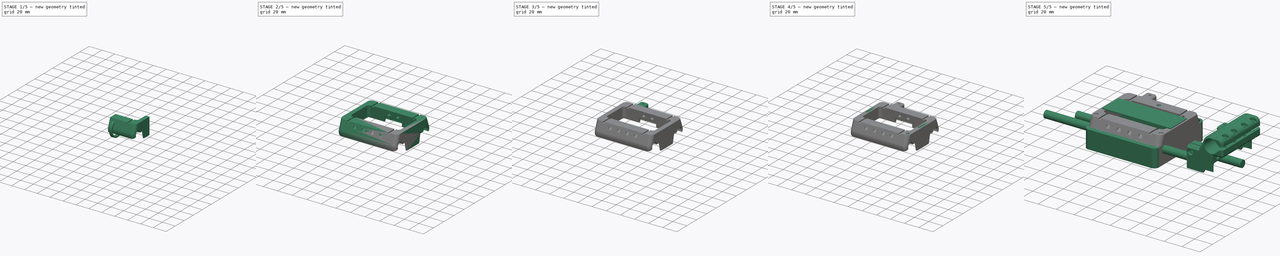
[diagram: build sequence overview — one tinted view per stage of 5, left to right]
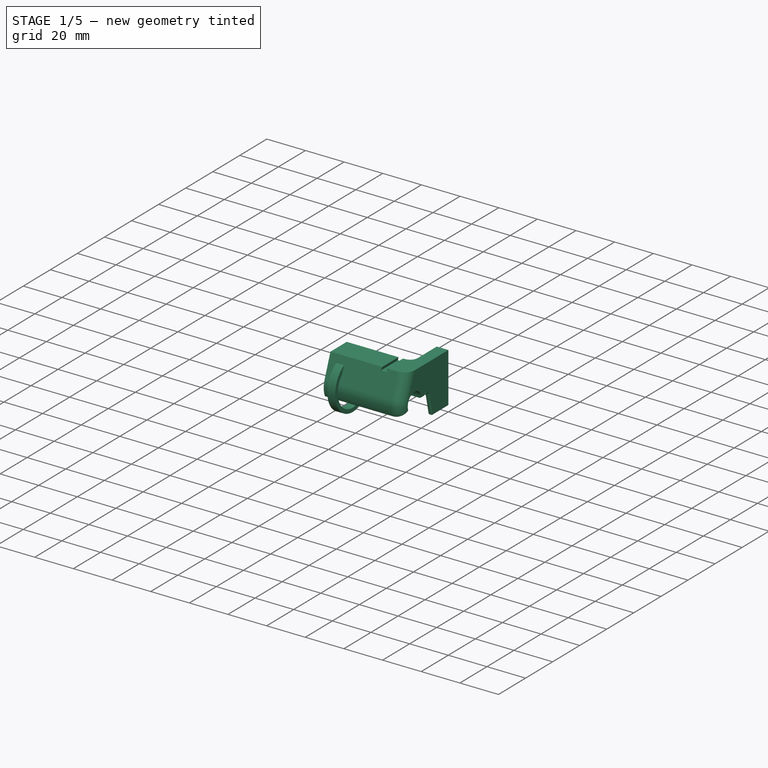
[diagram: stage 1 of 5 — iso view after this stage's code; geometry added in this stage tinted green]
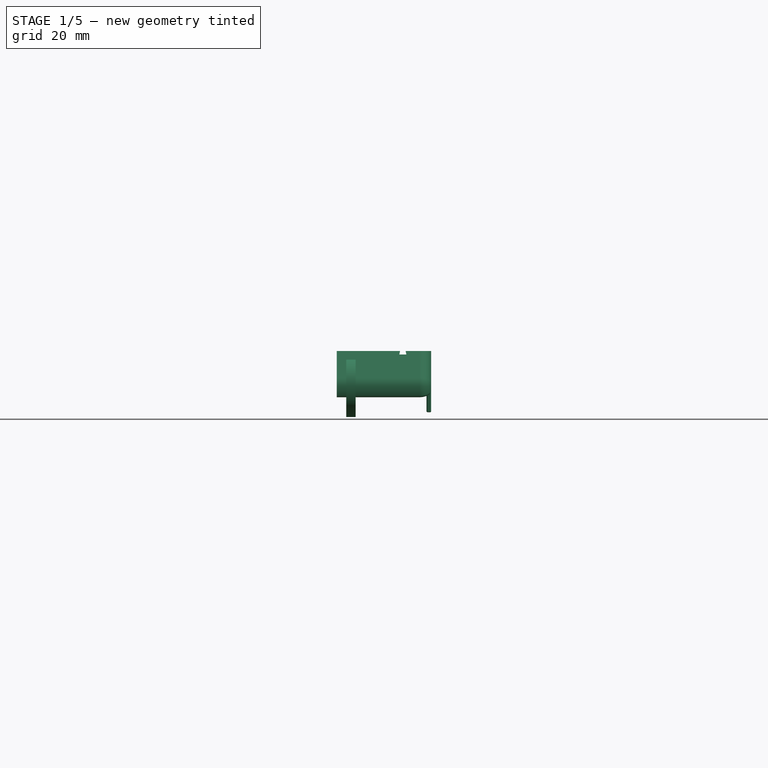
[diagram: stage 1 of 5 — front view after this stage's code; geometry added in this stage tinted green]
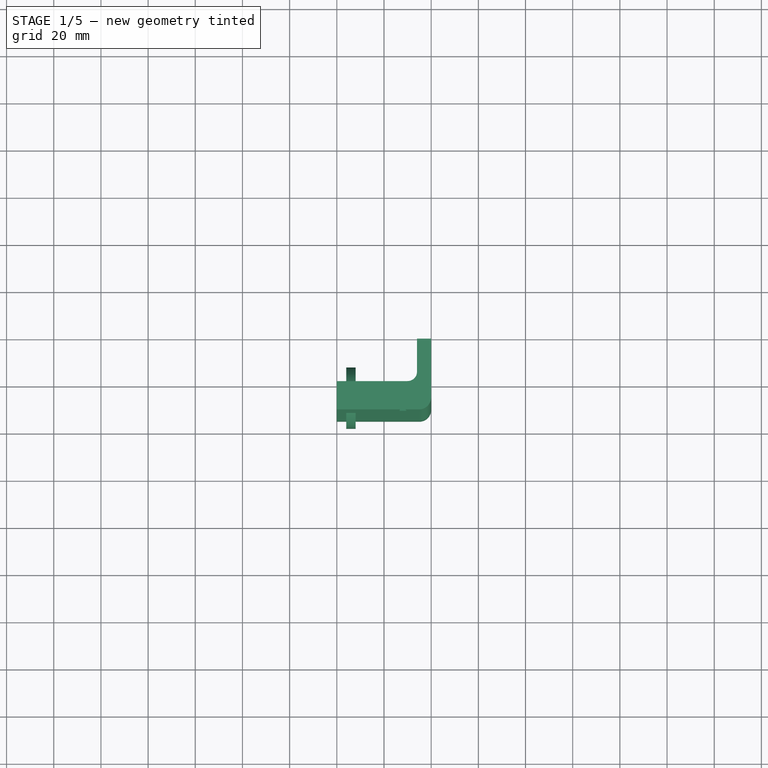
[diagram: stage 1 of 5 — top view after this stage's code; geometry added in this stage tinted green]
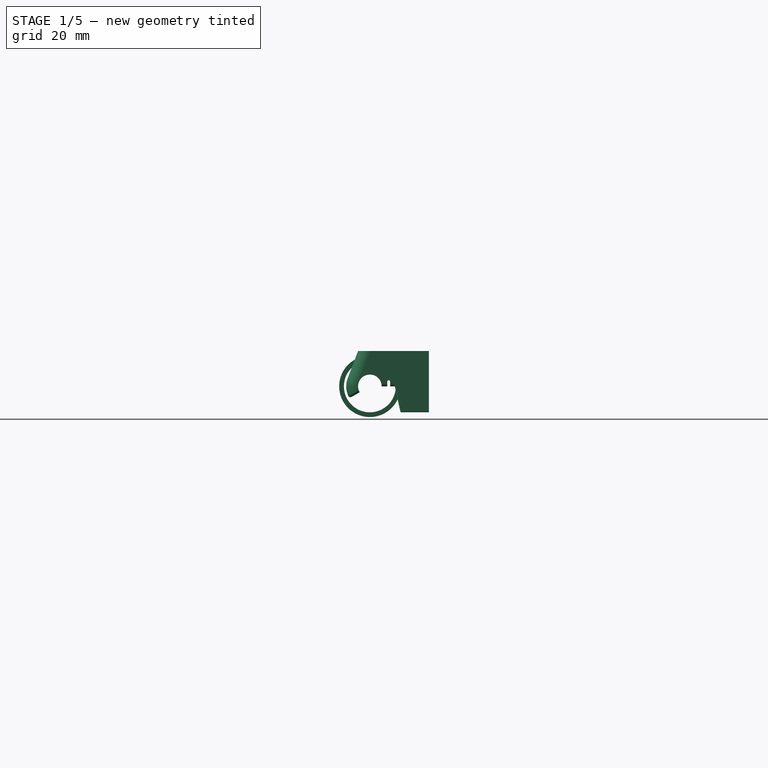
[diagram: stage 1 of 5 — right view after this stage's code; geometry added in this stage tinted green]
FCSTD DOCUMENT  (FreeCAD 0.16RUnknown)
Label: Xcarriage
License: All rights reserved
LicenseURL: http://en.wikipedia.org/wiki/All_rights_reserved
objects: Part::FeaturePython×21, Sketcher::SketchObject×14, Part::Cut×12, Part::Fillet×8, PartDesign::Pocket×6, Part::Mirroring×6, PartDesign::Pad×4, Part::MultiFuse×4, Part::Cylinder×3, App::DocumentObjectGroup×3, Part::Box×2, PartDesign::Revolution×2, Part::Feature×2, Spreadsheet::Sheet×1, Part::Offset×1, Part::Compound×1, Part::Extrusion×1, Part::Chamfer×1
note: 100 computed .brp shape members not serialized (recipe doc carries the construction recipe); baked Part::Feature solids carry a one-line shape summary decoded from their .brp

FEATURE [Sketcher::SketchObject] Sketch  label="Base"
  Placement = pos=(0,0,0) rot=(0.57735,0.57735,0.57735;2.0944rad)
  expr: Constraints[13] = -Parameters.B9
  sketch-geometry (6):
    g0: LineSegment StartX=0 StartY=0 StartZ=0 EndX=-30 EndY=0 EndZ=0
    g1: LineSegment StartX=-30 StartY=0 StartZ=0 EndX=-34.3485 EndY=-11.4495 EndZ=0
    g2: LineSegment StartX=0 StartY=0 StartZ=0 EndX=0 EndY=-15 EndZ=0
    g3: LineSegment StartX=0 StartY=-15 StartZ=0 EndX=-25 EndY=-15 EndZ=0
    g4: LineSegment StartX=-25 StartY=-15 StartZ=0 EndX=-33.6603 EndY=-20 EndZ=0
    g5: ArcOfCircle CenterX=-25 CenterY=-15 CenterZ=0 NormalX=0 NormalY=0 NormalZ=1 Radius=10 StartAngle=2.77862 EndAngle=3.66519
  constraints (17):
    c: Coincident(g0,g1)
    c: Coincident(g2,g3)
    c: Coincident(g3,g4)
    c: Horizontal(g3)
    c: Horizontal(g0)
    c: Vertical(g2)
    c: Coincident(g2,g-1)
    c: Coincident(g5,g3)
    c: Coincident(g5,g1)
    c: Coincident(g5,g4)
    c: Tangent(g5,g1)
    c: Coincident(g-1,g0)
    c: DistanceX(g3) = -25
    c: DistanceY(g3) = -15
    c: Distance(g4) = 10
    c: DistanceX(g0,g0) = 30
    c: Angle(g4) = -2.61799
FEATURE [PartDesign::Pad] Pad  label="Base001"
  Length = 40
  Length2 = 100
  Placement = pos=(0,0,0) rot=(0.57735,0.57735,0.57735;2.0944rad)
  Sketch = -> Sketch
  Type = 0
FEATURE [Part::Fillet] Fillet
  Base = -> Pad
  Edges = 4 edges: [Edge7 r=5,Edge8 r=1,Edge13 r=1,Edge16 r=1]
FEATURE [Sketcher::SketchObject] Sketch001  label="SamplePocket"
  Support = -> Fillet [Face1]
  sketch-geometry (4):
    g0: LineSegment StartX=0 StartY=-18 StartZ=0 EndX=34 EndY=-18 EndZ=0
    g1: LineSegment StartX=34 StartY=-18 StartZ=0 EndX=34 EndY=0 EndZ=0
    g2: LineSegment StartX=34 StartY=0 StartZ=0 EndX=0 EndY=0 EndZ=0
    g3: LineSegment StartX=0 StartY=0 StartZ=0 EndX=0 EndY=-18 EndZ=0
  constraints (11):
    c: Coincident(g1,g2)
    c: Coincident(g2,g3)
    c: Coincident(g3,g0)
    c: Horizontal(g0)
    c: Horizontal(g2)
    c: Vertical(g1)
    c: Vertical(g3)
    c: Coincident(g2,g-1)
    c: DistanceY(g3,g3) = 18
    c: DistanceX(g2,g2) = 34
    c: Coincident(g0,g1)
FEATURE [PartDesign::Pocket] Pocket  label="SamplePocket001"
  Length = 5
  Sketch = -> Sketch001
  Type = 1
FEATURE [Spreadsheet::Sheet] Spreadsheet  label="Parameters"
  cells = A1=Rod Clearance; B1(RodClear)=1; A2=Bolt Clearance; B2(BoltClear)=0; A3=Window X; B3(WindowX)=34; A4=Window Y; B4(WindowY)=18; A5=Bearing Linear Clearance; B5(BeLinClear)=0; A6=Bearing Radius Clearance; B6(BeRaClear)=0; A7=Tie width; B7(TieW)=4; A8=Tie Thickness; B8(TieThick)=2; A9=Sample to rod distance; B9=15; A10=Adjuster Tightness; B10(AdjTight)=0.25; A11=Magnet Pocket Depth; B11=1; A12=Magnet Pocket Radius; B12=2; A13=Magnet Radius Clearance; B13=0.1
FEATURE [Part::Cylinder] Cylinder  label="SmRod"
  Angle = 360
  Height = 50
  Placement = pos=(-1,-25,-15) rot=(0,1,0;1.5708rad)
  Radius = 4
  expr: Placement.Base.z = -Parameters.B9
FEATURE [Part::Offset] Offset  label="RodClearance"
  Fill = false
  Intersection = false
  Join = 0
  Mode = 0
  SelfIntersection = false
  Source = -> Cylinder
  Value = 1
  expr: Value = Parameters.RodClear
FEATURE [Sketcher::SketchObject] Sketch002  label="BearingCavity"
  expr: Constraints[24] = Parameters.TieW
  expr: Constraints[23] = Parameters.TieThick
  expr: Constraints[11] = 7.5 + Parameters.BeRaClear
  expr: Constraints[10] = 24 + Spreadsheet.BeLinClear
  sketch-geometry (9):
    g0: LineSegment [constr] StartX=-12 StartY=7.5 StartZ=0 EndX=12 EndY=7.5 EndZ=0
    g1: LineSegment [constr] StartX=12 StartY=7.5 StartZ=0 EndX=12 EndY=0 EndZ=0
    g2: LineSegment [constr] StartX=12 StartY=0 StartZ=0 EndX=-12 EndY=0 EndZ=0
    g3: LineSegment [constr] StartX=-12 StartY=0 StartZ=0 EndX=-12 EndY=7.5 EndZ=0
    g4: LineSegment StartX=-2 StartY=11 StartZ=0 EndX=2 EndY=11 EndZ=0
    g5: LineSegment StartX=2 StartY=11 StartZ=0 EndX=2 EndY=13 EndZ=0
    g6: LineSegment StartX=2 StartY=13 StartZ=0 EndX=-2 EndY=13 EndZ=0
    g7: LineSegment StartX=-2 StartY=13 StartZ=0 EndX=-2 EndY=11 EndZ=0
    g8: GeomPoint [constr] X=0 Y=12 Z=0
  constraints (25):
    c: Coincident(g0,g1)
    c: Coincident(g1,g2)
    c: Coincident(g2,g3)
    c: Coincident(g3,g0)
    c: Horizontal(g0)
    c: Horizontal(g2)
    c: Vertical(g1)
    c: Vertical(g3)
    c: PointOnObject(g2,g-1)
    c: Symmetric(g2,g1,g-2)
    c: DistanceX(g0,g0) = 24
    c: DistanceY(g3,g3) = 7.5
    c: Coincident(g4,g5)
    c: Coincident(g5,g6)
    c: Coincident(g6,g7)
    c: Coincident(g7,g4)
    c: Horizontal(g4)
    c: Horizontal(g6)
    c: Vertical(g5)
    c: Vertical(g7)
    c: Symmetric(g4,g5,g8)
    c: PointOnObject(g8,g-2)
    c: DistanceY(g-1,g8) = 12
    c: DistanceY(g5,g5) = 2
    c: DistanceX(g4,g4) = 4
FEATURE [PartDesign::Revolution] Revolution  label="TiePocket"
  Angle = 360
  Axis = (1,0,0)
  Base = (0,0,0)
  ReferenceAxis = -> Sketch002 [H_Axis]
  Sketch = -> Sketch002
FEATURE [Part::FeaturePython] Clone031  label="Clone of TiePocket"  # Draft clone (typed FeaturePython)
  Objects = -> [Revolution]
  Placement = pos=(6,-25,-15) rot=(0,0,1;0rad)
  Scale = (1,1,1)
  expr: Placement.Base.z = -Parameters.B9
FEATURE [Part::Fillet] Fillet008  label="SamplePocketFillet"
  Base = -> Pocket
  Edges = 1 edges r=4: [Edge19]
FEATURE [Part::Cut] Cut  label="SmRodCut"
  Base = -> Fillet008
  Tool = -> Offset
FEATURE [Sketcher::SketchObject] Sketch005  label="EndstopHit"
  Placement = pos=(40,0,0) rot=(0.57735,0.57735,0.57735;2.0944rad)
  Support = -> Cut [Face6]
  expr: Constraints[7] = -11 - Parameters.B9
  sketch-geometry (4):
    g0: LineSegment StartX=-15.1037 StartY=-12 StartZ=0 EndX=0 EndY=-12 EndZ=0
    g1: LineSegment StartX=0 StartY=-12 StartZ=0 EndX=0 EndY=-26 EndZ=0
    g2: LineSegment StartX=0 StartY=-26 StartZ=0 EndX=-12 EndY=-26 EndZ=0
    g3: LineSegment StartX=-12 StartY=-26 StartZ=0 EndX=-15.1037 EndY=-12 EndZ=0
  constraints (12):
    c: Coincident(g0,g1)
    c: Coincident(g1,g2)
    c: Coincident(g2,g3)
    c: Coincident(g3,g0)
    c: Horizontal(g0)
    c: Horizontal(g2)
    c: DistanceX(g2,g2) = 12
    c: DistanceY(g1) = -26
    c: Angle(g1,g3) = 0.218166
    c: PointOnObject(g0,g-2)
    c: Vertical(g1)
    c: DistanceY(g1,g1) = 14
FEATURE [PartDesign::Pad] Pad001  label="EndstopHit001"
  Length = 2
  Length2 = 100
  Reversed = true
  Sketch = -> Sketch005
  Type = 0
FEATURE [Part::FeaturePython] refine  label="refine_EndstopHit001"  # WARN: FeaturePython — macro-defined, semantics opaque (R4)
  Base = -> Pad001
FEATURE [Part::Fillet] Fillet001  label="EndstopFillet"
  Base = -> refine
  Edges = 6 edges r=0.5: [Edge2,Edge3,Edge4,Edge5,Edge6,Edge8]
FEATURE [Sketcher::SketchObject] Sketch008  label="StringChannel"
  Placement = pos=(40,0,0) rot=(0.57735,0.57735,0.57735;2.0944rad)
  Support = -> Fillet001 [Face6]
  expr: Constraints[9] = 2 - Parameters.B9
  sketch-geometry (4):
    g0: ArcOfCircle CenterX=-17 CenterY=-13 CenterZ=0 NormalX=0 NormalY=0 NormalZ=1 Radius=0.6 StartAngle=6.28317 EndAngle=9.42479
    g1: LineSegment StartX=-17.6 StartY=-13 StartZ=0 EndX=-17.6 EndY=-17 EndZ=0
    g2: LineSegment StartX=-17.6 StartY=-17 StartZ=0 EndX=-16.4 EndY=-17 EndZ=0
    g3: LineSegment StartX=-16.4 StartY=-17 StartZ=0 EndX=-16.4 EndY=-13 EndZ=0
  constraints (13):
    c: Coincident(g1,g2)
    c: Coincident(g2,g3)
    c: Vertical(g3)
    c: Vertical(g1)
    c: Horizontal(g2)
    c: Coincident(g1,g0)
    c: Coincident(g3,g0)
    c: Tangent(g1,g0)
    c: Tangent(g3,g0)
    c: DistanceY(g0) = -13
    c: Radius(g0) = 0.6
    c: DistanceX(g0) = -17
    c: DistanceY(g1,g1) = 4
FEATURE [PartDesign::Pocket] Pocket001  label="StringChannel001"
  Length = 9
  Sketch = -> Sketch008
  Type = 1
FEATURE [Sketcher::SketchObject] Sketch009  label="StringFix"
  Placement = pos=(0,-18,0) rot=(0,0.707107,0.707107;3.14159rad)
  Support = -> Pocket001 [Face25]
  sketch-geometry (5):
    g0: LineSegment StartX=-28.3915 StartY=3.5 StartZ=0 EndX=-27.6085 EndY=3.5 EndZ=0
    g1: LineSegment StartX=-27.6085 StartY=3.5 StartZ=0 EndX=-26.5 EndY=-1.5 EndZ=0
    g2: LineSegment StartX=-26.5 StartY=-1.5 StartZ=0 EndX=-29.5 EndY=-1.5 EndZ=0
    g3: LineSegment StartX=-29.5 StartY=-1.5 StartZ=0 EndX=-28.3915 EndY=3.5 EndZ=0
    g4: LineSegment [constr] StartX=-28 StartY=3.5 StartZ=0 EndX=-28 EndY=-1.5 EndZ=0
  constraints (16):
    c: Coincident(g0,g1)
    c: Coincident(g1,g2)
    c: Coincident(g2,g3)
    c: Coincident(g3,g0)
    c: PointOnObject(g4,g0)
    c: PointOnObject(g4,g2)
    c: Vertical(g4)
    c: Horizontal(g0)
    c: Horizontal(g2)
    c: Symmetric(g0,g0,g4)
    c: Symmetric(g1,g2,g4)
    c: Angle(g1,g3) = -0.436332
    c: DistanceY(g4) = -1.5
    c: DistanceX(g2,g2) = 3
    c: DistanceX(g4) = -28
    c: DistanceY(g1,g0) = 5
FEATURE [PartDesign::Pocket] Pocket004  label="StringFix001"
  Length = 5
  Sketch = -> Sketch009
  Type = 1
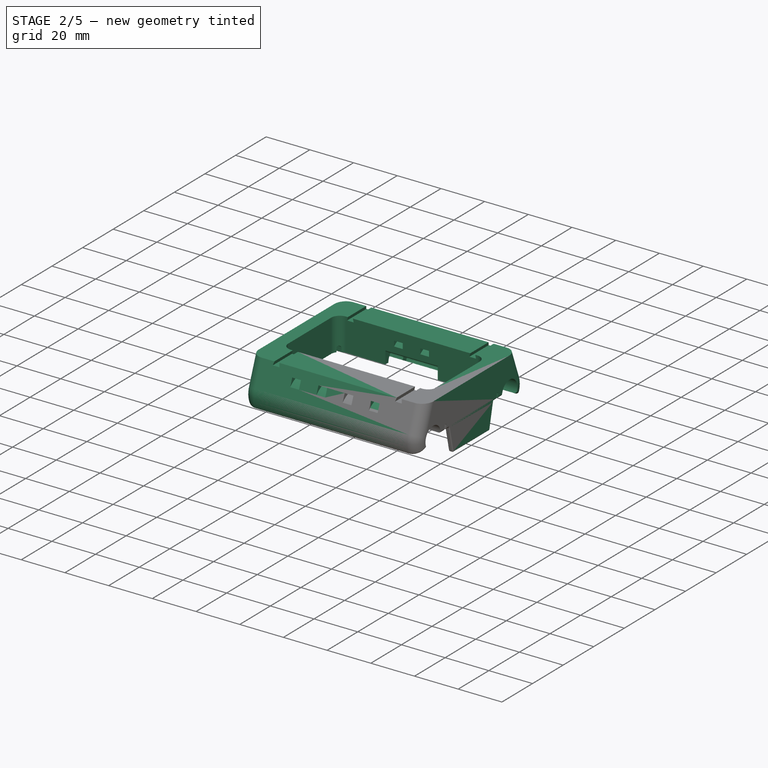
[diagram: stage 2 of 5 — iso view after this stage's code; geometry added in this stage tinted green]
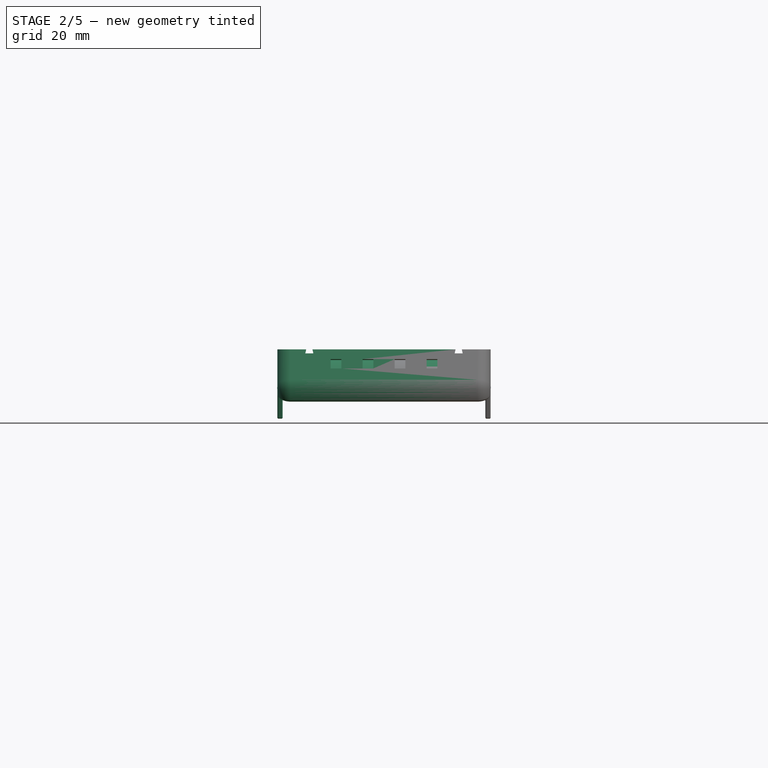
[diagram: stage 2 of 5 — front view after this stage's code; geometry added in this stage tinted green]
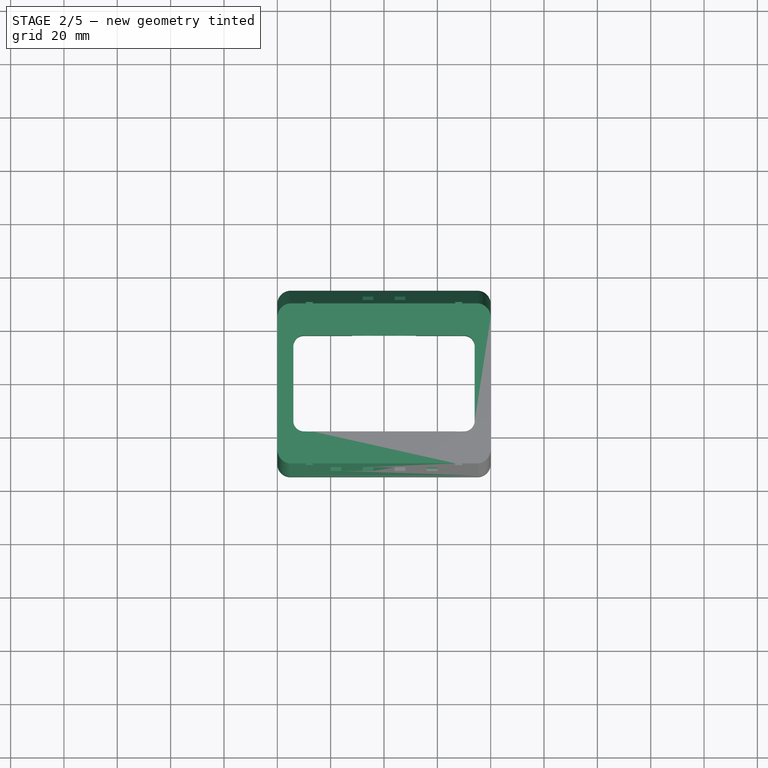
[diagram: stage 2 of 5 — top view after this stage's code; geometry added in this stage tinted green]
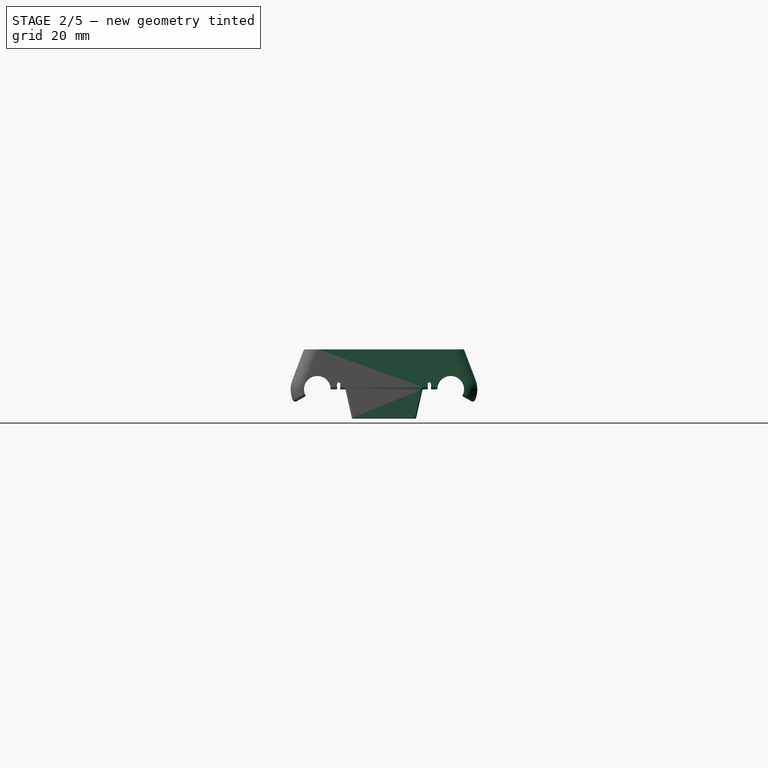
[diagram: stage 2 of 5 — right view after this stage's code; geometry added in this stage tinted green]
FEATURE [Part::FeaturePython] Clone  label="FrontTie"  # Draft clone (typed FeaturePython)
  Objects = -> [Revolution]
  Placement = pos=(6,25,-15) rot=(0,0,1;0rad)
  Scale = (1,1,1)
  expr: Placement.Base.z = -Parameters.B9
FEATURE [Part::FeaturePython] Clone018  label="BackTies"  # Draft clone (typed FeaturePython)
  Objects = -> [Revolution]
  Placement = pos=(18,-25,-15) rot=(0,0,1;0rad)
  Scale = (1,1,1)
  expr: Placement.Base.z = -Parameters.B9
FEATURE [Part::Mirroring] Part__Mirroring  label="StringFix001 (Mirror #3)"
  Base = (0,0,0)
  Normal = (0,1,0)
  Source = -> Pocket004
FEATURE [Part::MultiFuse] Fusion001003005002002003  label="FrontMirror"
  Shapes = -> [Part__Mirroring,Pocket004]
FEATURE [Sketcher::SketchObject] Sketch004  label="FrontBearing"
  Placement = pos=(0,0,0) rot=(0.57735,-0.57735,-0.57735;2.0944rad)
  Support = -> Fusion001003005002002003 [Face67]
  expr: Constraints[1] = -Parameters.B9
  expr: Constraints[2] = 7.5 + Parameters.BeRaClear
  sketch-geometry (1):
    g0: Circle CenterX=-25 CenterY=-15 CenterZ=0 NormalX=0 NormalY=0 NormalZ=1 Radius=7.5
  constraints (3):
    c: DistanceX(g0) = -25
    c: DistanceY(g0) = -15
    c: Radius(g0) = 7.5
FEATURE [PartDesign::Pocket] Pocket002  label="FrontBearing001"
  Length = 12
  Sketch = -> Sketch004
  Type = 0
  expr: Length = 12 + Parameters.BeLinClear
FEATURE [Part::Fillet] Fillet003  label="AntiCreaseFillet"
  Base = -> Pocket002
  Edges = 1 edges r=1: [Edge151]
FEATURE [Sketcher::SketchObject] Sketch003  label="BackBearing"
  Placement = pos=(0,0,0) rot=(0.57735,-0.57735,-0.57735;2.0944rad)
  Support = -> Fillet003 [Face59]
  expr: Constraints[1] = -Parameters.B9
  expr: Constraints[2] = 7.5 + Parameters.BeRaClear
  sketch-geometry (1):
    g0: Circle CenterX=25 CenterY=-15 CenterZ=0 NormalX=0 NormalY=0 NormalZ=1 Radius=7.5
  constraints (3):
    c: DistanceX(g0) = 25
    c: DistanceY(g0) = -15
    c: Radius(g0) = 7.5
FEATURE [PartDesign::Pocket] Pocket003  label="BackBearings"
  Length = 24
  Sketch = -> Sketch003
  Type = 0
  expr: Length = 24 + Parameters.BeLinClear
FEATURE [Part::Fillet] Fillet004  label="AntiCreaseFillet001"
  Base = -> Pocket003
  Edges = 1 edges r=1: [Edge121]
FEATURE [Part::Cut] Cut002  label="BackTies001"
  Base = -> Fillet004
  Tool = -> Clone018
FEATURE [Part::Cut] Cut007007002003012  label="BackTies002"
  Base = -> Cut002
  Tool = -> Clone031
FEATURE [Part::Cut] Cut003  label="FrontTies"
  Base = -> Cut007007002003012
  Tool = -> Clone
FEATURE [Part::Mirroring] Part__Mirroring001  label="FrontTies (Mirror #2)"
  Base = (0,0,0)
  Normal = (1,0,0)
  Source = -> Cut003
FEATURE [Part::MultiFuse] Fusion002  label="SideMirror"
  Shapes = -> [Cut003,Part__Mirroring001]
FEATURE [Part::FeaturePython] refine001  label="RefinedSymmetry"  # WARN: FeaturePython — macro-defined, semantics opaque (R4)
  Base = -> Fusion002
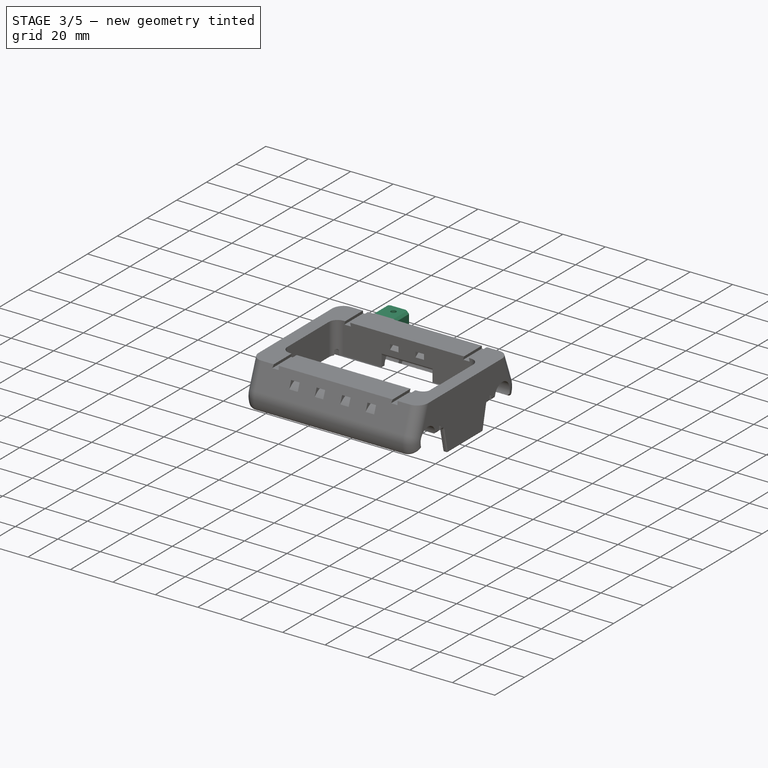
[diagram: stage 3 of 5 — iso view after this stage's code; geometry added in this stage tinted green]
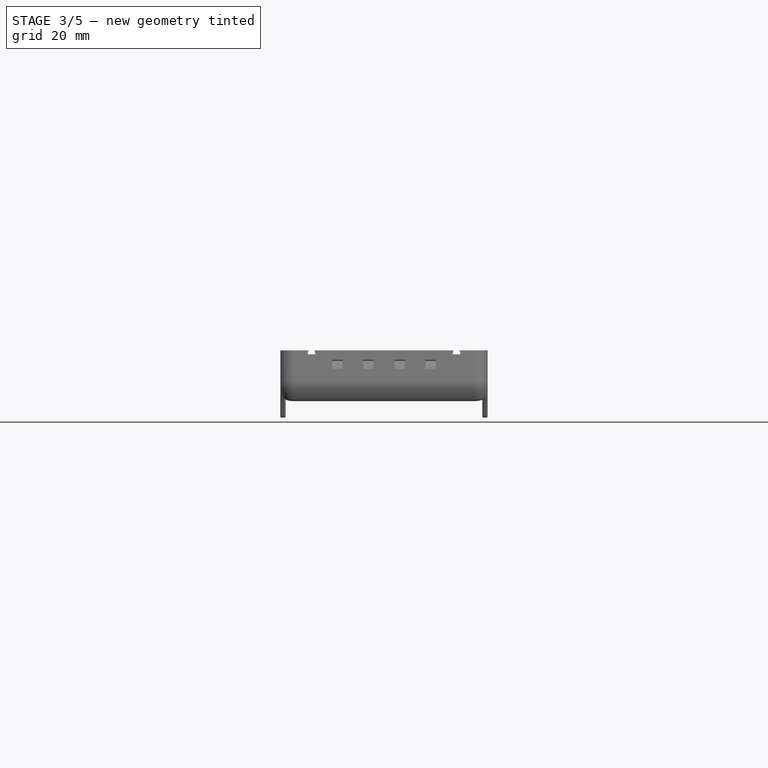
[diagram: stage 3 of 5 — front view after this stage's code; geometry added in this stage tinted green]
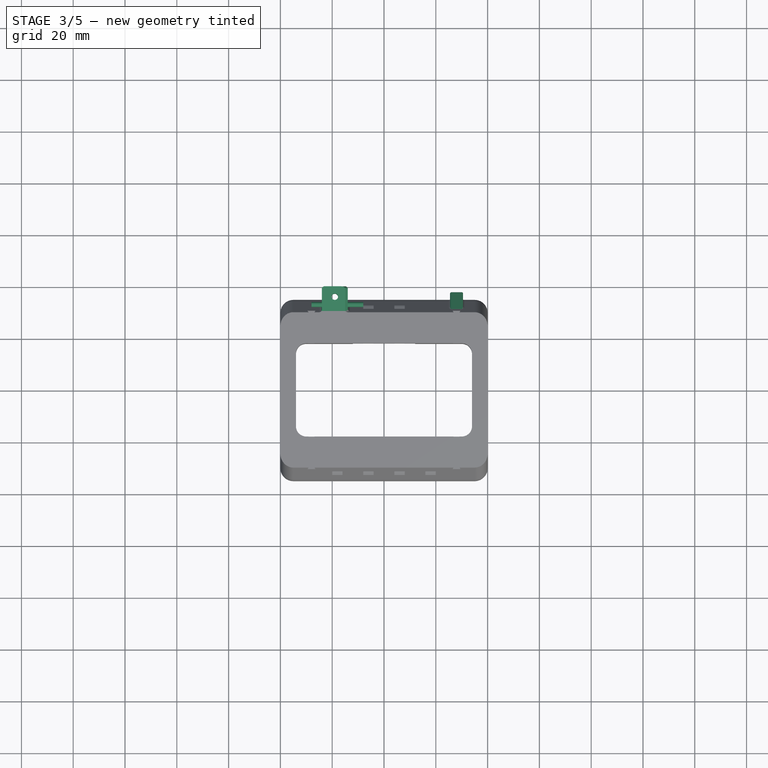
[diagram: stage 3 of 5 — top view after this stage's code; geometry added in this stage tinted green]
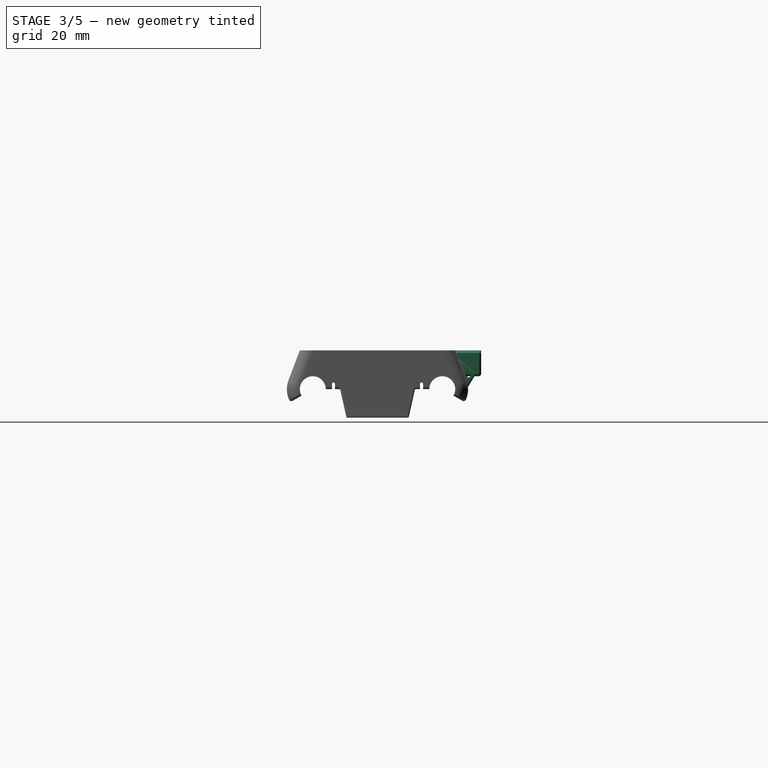
[diagram: stage 3 of 5 — right view after this stage's code; geometry added in this stage tinted green]
FEATURE [Sketcher::SketchObject] Sketch006  label="StringPath"
  Placement = pos=(0,0,-15) rot=(0,0,1;0rad)
  expr: Placement.Base.z = -Parameters.B9
  sketch-geometry (17):
    g0: ArcOfCircle CenterX=-108 CenterY=90 CenterZ=0 NormalX=0 NormalY=0 NormalZ=1 Radius=8 StartAngle=6.28319 EndAngle=9.42478
    g1: ArcOfCircle CenterX=108 CenterY=90 CenterZ=0 NormalX=0 NormalY=0 NormalZ=1 Radius=8 StartAngle=8.352e-09 EndAngle=3.14159
    g2: ArcOfCircle CenterX=108 CenterY=-82 CenterZ=0 NormalX=0 NormalY=0 NormalZ=1 Radius=7.99996 StartAngle=3.14159 EndAngle=6.28319
    g3: ArcOfCircle CenterX=95.0001 CenterY=-21 CenterZ=0 NormalX=0 NormalY=0 NormalZ=1 Radius=5 StartAngle=6.28318 EndAngle=7.85398
    g4: ArcOfCircle CenterX=95.0001 CenterY=21 CenterZ=0 NormalX=0 NormalY=0 NormalZ=1 Radius=5 StartAngle=4.71239 EndAngle=6.28918
    g5: ArcOfCircle CenterX=-95.0001 CenterY=21 CenterZ=0 NormalX=0 NormalY=0 NormalZ=1 Radius=5 StartAngle=3.14758 EndAngle=4.71239
    g6: ArcOfCircle CenterX=-95.0001 CenterY=-21 CenterZ=0 NormalX=0 NormalY=0 NormalZ=1 Radius=5 StartAngle=1.5708 EndAngle=3.14159
    g7: ArcOfCircle CenterX=-108 CenterY=-82 CenterZ=0 NormalX=0 NormalY=0 NormalZ=1 Radius=7.99996 StartAngle=3.14159 EndAngle=6.28319
    g8: LineSegment StartX=-116 StartY=90 StartZ=0 EndX=-116 EndY=-82 EndZ=0
    g9: LineSegment StartX=-100 StartY=-21 StartZ=0 EndX=-100 EndY=-82 EndZ=0
    g10: LineSegment StartX=-95.0001 StartY=-16 StartZ=0 EndX=95.0001 EndY=-16 EndZ=0
    g11: LineSegment StartX=-100 StartY=90 StartZ=0 EndX=-100 EndY=20.97 EndZ=0
    g12: LineSegment StartX=100 StartY=90 StartZ=0 EndX=100 EndY=21.03 EndZ=0
    g13: LineSegment StartX=116 StartY=90 StartZ=0 EndX=116 EndY=-82 EndZ=0
    g14: LineSegment StartX=100 StartY=-82 StartZ=0 EndX=100 EndY=-21 EndZ=0
    g15: LineSegment StartX=-95.0001 StartY=16 StartZ=0 EndX=-20.947 EndY=16 EndZ=0
    g16: LineSegment StartX=14.5397 StartY=16 StartZ=0 EndX=95.0001 EndY=16 EndZ=0
  constraints (48):
    c: Equal(g0,g1)
    c: Symmetric(g0,g1,g-2)
    c: Symmetric(g2,g7,g-2)
    c: Equal(g7,g2)
    c: Symmetric(g6,g3,g-2)
    c: Symmetric(g5,g4,g-2)
    c: DistanceX(g1) = 108
    c: DistanceY(g1) = 90
    c: DistanceY(g2) = -82
    c: Coincident(g13,g1)
    c: Coincident(g13,g2)
    c: Coincident(g14,g2)
    c: Coincident(g14,g3)
    c: Coincident(g3,g10)
    c: Coincident(g4,g12)
    c: Coincident(g6,g10)
    c: Coincident(g6,g9)
    c: Coincident(g7,g9)
    c: Coincident(g7,g8)
    c: Coincident(g8,g0)
    c: Coincident(g11,g0)
    c: Coincident(g12,g1)
    c: Coincident(g5,g11)
    c: Coincident(g16,g4)
    c: Coincident(g15,g5)
    c: Vertical(g8)
    c: Vertical(g13)
    c: Vertical(g12)
    c: Vertical(g11)
    c: Vertical(g9)
    c: Vertical(g14)
    c: Horizontal(g10)
    c: Horizontal(g15)
    c: Horizontal(g16)
    c: PointOnObject(g15,g16)
    c: Tangent(g5,g15)
    c: Tangent(g11,g0)
    c: Tangent(g9,g7)
    c: Tangent(g9,g6)
    c: Tangent(g10,g3)
    c: Tangent(g16,g4)
    c: Radius(g0) = 8
    c: Symmetric(g5,g6,g-1)
    c: Equal(g6,g5)
    c: Tangent(g1,g13)
    c: Tangent(g8,g0)
    c: Radius(g4) = 5
    c: DistanceY(g3,g4) = 32
FEATURE [Part::Feature] Fusion002004  label="SampleFix"
  Placement = pos=(0,0,0) rot=(0,0,1;3.14159rad)
  shape: bbox 79 x 12.9 x 1 mm, 32 faces (baked)
FEATURE [Part::Feature] Pocket008003001  label="MiniIdler"
  Placement = pos=(94,-22,-35) rot=(0,0,1;0rad)
  shape: bbox 17.22 x 18.36 x 5 mm, 12 faces (baked)
FEATURE [Sketcher::SketchObject] Sketch012  label="StringFix002"
  Placement = pos=(0,0,0) rot=(0.57735,0.57735,0.57735;2.0944rad)
  sketch-geometry (3):
    g0: LineSegment StartX=-7 StartY=6 StartZ=0 EndX=-4.14 EndY=-7 EndZ=0
    g1: LineSegment StartX=-4.14 StartY=-7 StartZ=0 EndX=0 EndY=0 EndZ=0
    g2: LineSegment StartX=0 StartY=0 StartZ=0 EndX=-7 EndY=6 EndZ=0
  constraints (8):
    c: Coincident(g0,g1)
    c: Coincident(g1,g2)
    c: Coincident(g2,g0)
    c: Angle(g2,g1) = 1.74533
    c: Coincident(g1,g-1)
    c: DistanceX(g0,g-1) = 7
    c: DistanceY(g1,g1) = 7
    c: DistanceY(g0) = 6
FEATURE [Part::Extrusion] Extrude  label="StringFix003"
  Base = -> Sketch012
  Dir = (5,0,0)
  Solid = true
FEATURE [Part::FeaturePython] Clone023  label="Clone of StringFix003"  # Draft clone (typed FeaturePython)
  Objects = -> [Extrude]
  Placement = pos=(25.5,38,-9) rot=(0,0,1;0rad)
  Scale = (1,1,1)
FEATURE [Part::Cylinder] Cylinder001  label="StringFixHole"
  Angle = 360
  Height = 20
  Radius = 1
FEATURE [Part::FeaturePython] Clone024  label="Clone of StringFixHole"  # Draft clone (typed FeaturePython)
  Objects = -> [Cylinder001]
  Placement = pos=(23,35,-9.5) rot=(0,1,0;1.5708rad)
  Scale = (1,1,1)
FEATURE [Sketcher::SketchObject] Sketch023  label="M3Thread002"
  Placement = pos=(0,0,0) rot=(0.57735,0.57735,0.57735;2.0944rad)
  sketch-geometry (1):
    g0: Circle CenterX=0 CenterY=0 CenterZ=0 NormalX=0 NormalY=0 NormalZ=1 Radius=1.25
  constraints (2):
    c: Radius(g0) = 1.25
    c: Coincident(g0,g-1)
FEATURE [PartDesign::Pad] Pad013  label="AdjustThread"
  Length = 50
  Length2 = 100
  Placement = pos=(0,0,0) rot=(0.57735,0.57735,0.57735;2.0944rad)
  Sketch = -> Sketch023
  Type = 0
FEATURE [Part::FeaturePython] Clone028  label="Clone of AdjustThread"  # Draft clone (typed FeaturePython)
  Objects = -> [Pad013]
  Placement = pos=(-19,36,-11) rot=(0,0,1;0rad)
  Scale = (1,1,1)
FEATURE [App::DocumentObjectGroup] Group  label="Reference"
  Group = -> [Clone007,Clone004,Clone006,Clone016,Clone017,Clone003,Box001,Compound002,Sketch006,Box002,Fusion002004,Pocket008003001,LYCarriage_step1_01,Part__Mirroring005]
FEATURE [Part::FeaturePython] Clone029002  label="Clone of StringFixHole001"  # Draft clone (typed FeaturePython)
  Objects = -> [Cylinder001]
  Placement = pos=(-28,33,-3) rot=(0,1,0;1.5708rad)
  Scale = (1,1,1)
FEATURE [Part::MultiFuse] Fusion001003005002002004  label="StringFixFusion"
  Shapes = -> [Clone023,refine001]
FEATURE [Part::Fillet] Fillet005  label="StringFixFillet"
  Base = -> Fusion001003005002002004
  Edges = 9 edges r=0.5: [Edge166,Edge167,Edge168,Edge315,Edge317,Edge318,Edge319,Edge320,Edge321]
FEATURE [Part::Cut] Cut007007002003013  label="StringFixHoleCut"
  Base = -> Fillet005
  Tool = -> Clone024
FEATURE [Sketcher::SketchObject] Sketch016  label="ThreadDice"
  Support = -> Cut007007002003013 [Face13]
  sketch-geometry (4):
    g0: LineSegment StartX=-24 StartY=29 StartZ=0 EndX=-14 EndY=29 EndZ=0
    g1: LineSegment StartX=-14 StartY=29 StartZ=0 EndX=-14 EndY=40 EndZ=0
    g2: LineSegment StartX=-14 StartY=40 StartZ=0 EndX=-24 EndY=40 EndZ=0
    g3: LineSegment StartX=-24 StartY=40 StartZ=0 EndX=-24 EndY=29 EndZ=0
  constraints (12):
    c: Coincident(g0,g1)
    c: Coincident(g1,g2)
    c: Coincident(g2,g3)
    c: Coincident(g3,g0)
    c: Horizontal(g0)
    c: Horizontal(g2)
    c: Vertical(g1)
    c: Vertical(g3)
    c: DistanceY(g2) = 40
    c: DistanceY(g0) = 29
    c: DistanceX(g2,g2) = 10
    c: DistanceX(g0) = -14
FEATURE [PartDesign::Pad] Pad014  label="ThreadDice001"
  Length = 10
  Length2 = 100
  Reversed = true
  Sketch = -> Sketch016
  Type = 0
FEATURE [Part::FeaturePython] refine002  label="refine_ThreadDice001"  # WARN: FeaturePython — macro-defined, semantics opaque (R4)
  Base = -> Pad014
FEATURE [Part::Chamfer] Chamfer  label="AccessChamfer"
  Base = -> refine002
  Edges = 1 edges r=1: [Edge5]
FEATURE [Part::Fillet] Fillet006  label="DiceFillet"
  Base = -> Chamfer
  Edges = 10 edges r=1: [Edge1,Edge2,Edge3,Edge5,Edge7,Edge8,Edge9,Edge11,Edge12,Edge20]
FEATURE [Part::Cut] Cut007007002003014  label="AdjustThreadCut"
  Base = -> Fillet006
  Tool = -> Clone028
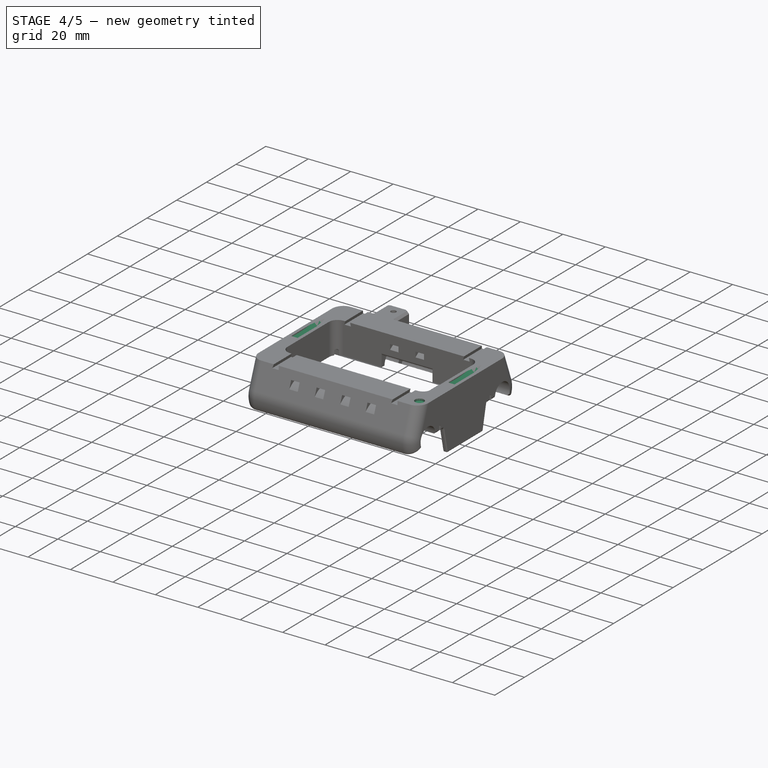
[diagram: stage 4 of 5 — iso view after this stage's code; geometry added in this stage tinted green]
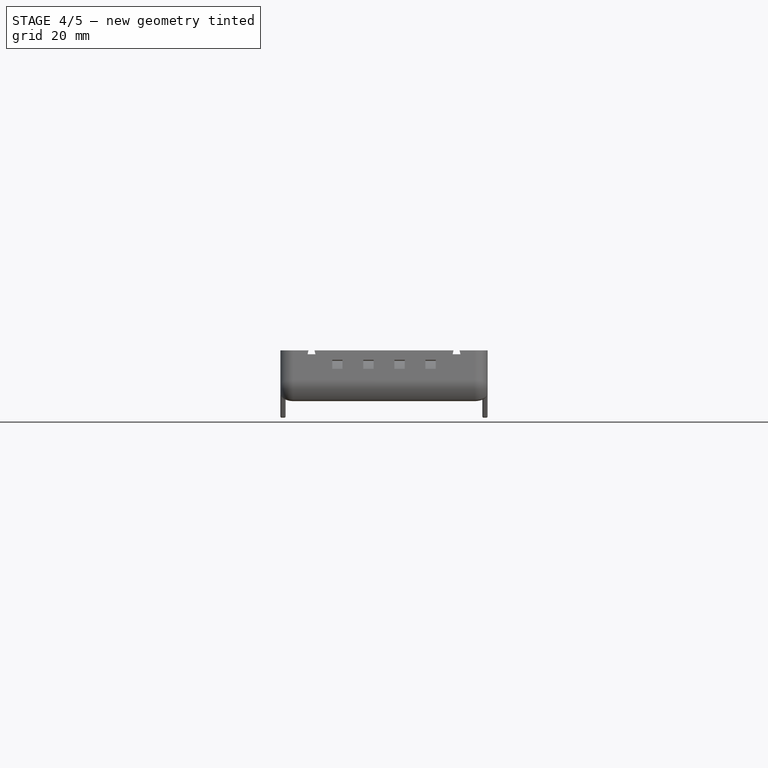
[diagram: stage 4 of 5 — front view after this stage's code; geometry added in this stage tinted green]
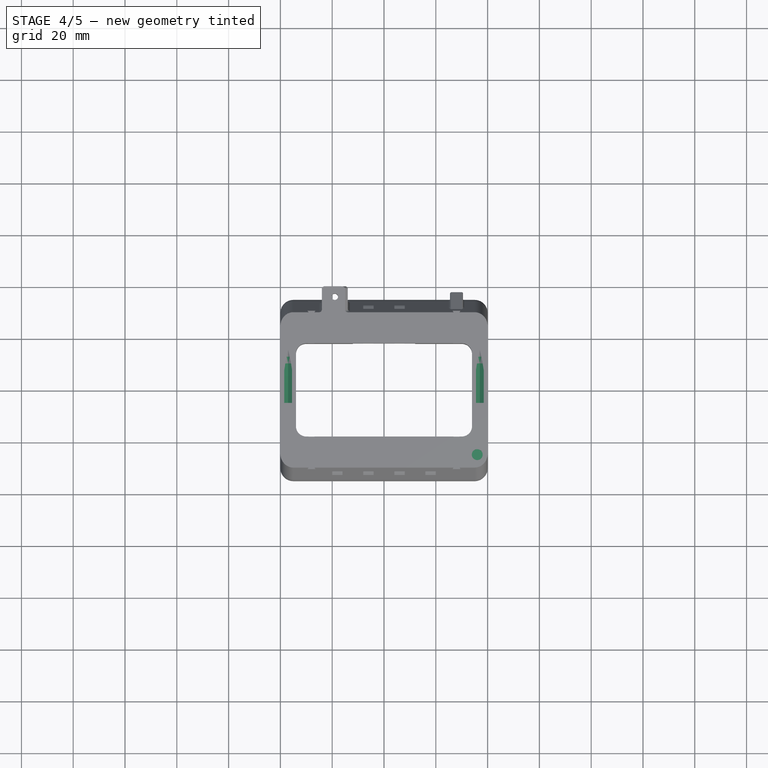
[diagram: stage 4 of 5 — top view after this stage's code; geometry added in this stage tinted green]
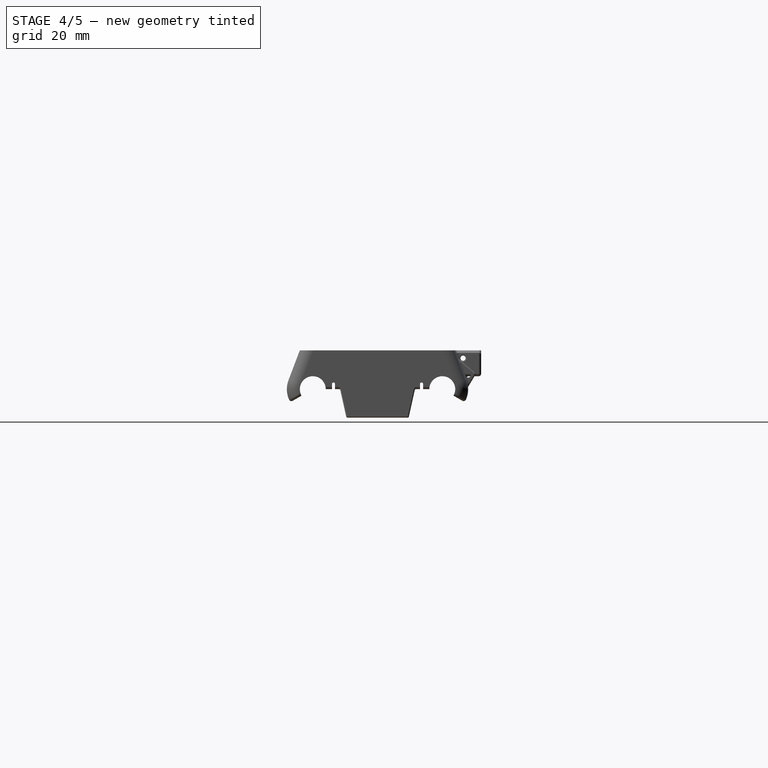
[diagram: stage 4 of 5 — right view after this stage's code; geometry added in this stage tinted green]
FEATURE [Sketcher::SketchObject] Sketch024  label="SliderGrooveProfile"
  Placement = pos=(0,0,0) rot=(1,0,0;1.5708rad)
  sketch-geometry (4):
    g0: LineSegment StartX=0 StartY=0 StartZ=0 EndX=0 EndY=-60 EndZ=0
    g1: LineSegment StartX=0 StartY=-60 StartZ=0 EndX=1.5 EndY=-58.5 EndZ=0
    g2: LineSegment StartX=1.5 StartY=-58.5 StartZ=0 EndX=1.5 EndY=0 EndZ=0
    g3: LineSegment StartX=1.5 StartY=0 StartZ=0 EndX=0 EndY=0 EndZ=0
  constraints (11):
    c: Coincident(g1,g2)
    c: Coincident(g2,g3)
    c: Coincident(g3,g0)
    c: Horizontal(g3)
    c: Vertical(g0)
    c: Coincident(g0,g-1)
    c: Vertical(g2)
    c: Coincident(g1,g0)
    c: Angle(g1,g0) = 0.785398
    c: DistanceY(g0,g0) = 60
    c: DistanceX(g3,g3) = 1.5
FEATURE [PartDesign::Revolution] Revolution001  label="HalfSlider"
  Angle = 360
  Axis = (1,0,0)
  Base = (0,0,0)
  Placement = pos=(0,0,0) rot=(1,0,0;1.5708rad)
  ReferenceAxis = -> Sketch024 [H_Axis]
  Reversed = true
  Sketch = -> Sketch024
FEATURE [Part::Mirroring] Part__Mirroring006  label="HalfSlider (Mirror #4)"
  Base = (0,0,0)
  Normal = (1,0,0)
  Source = -> Revolution001
FEATURE [Part::MultiFuse] Fusion  label="SliderCircle"
  Shapes = -> [Part__Mirroring006,Revolution001]
FEATURE [Sketcher::SketchObject] Sketch025  label="SlGrUpperCut"
  Placement = pos=(-1.5,0,0) rot=(0.57735,-0.57735,-0.57735;2.0944rad)
  Support = -> Fusion [Face1]
  sketch-geometry (6):
    g0: LineSegment StartX=-100 StartY=100 StartZ=0 EndX=100 EndY=100 EndZ=0
    g1: LineSegment StartX=100 StartY=100 StartZ=0 EndX=100 EndY=-58 EndZ=0
    g2: LineSegment StartX=100 StartY=-58 StartZ=0 EndX=-5 EndY=-58 EndZ=0
    g3: LineSegment StartX=-100 StartY=-66 StartZ=0 EndX=-100 EndY=100 EndZ=0
    g4: LineSegment StartX=-100 StartY=-66 StartZ=0 EndX=-5 EndY=-66 EndZ=0
    g5: LineSegment StartX=-5 StartY=-66 StartZ=0 EndX=-5 EndY=-58 EndZ=0
  constraints (18):
    c: Coincident(g0,g1)
    c: Coincident(g1,g2)
    c: Coincident(g3,g0)
    c: Horizontal(g0)
    c: Horizontal(g2)
    c: Vertical(g1)
    c: Vertical(g3)
    c: DistanceY(g0) = 100
    c: DistanceY(g1) = -58
    c: Coincident(g4,g5)
    c: Symmetric(g0,g0,g-2)
    c: DistanceX(g0,g0) = 200
    c: Coincident(g5,g2)
    c: Coincident(g3,g4)
    c: Horizontal(g4)
    c: Vertical(g5)
    c: DistanceX(g2) = -5
    c: DistanceY(g5,g5) = 8
FEATURE [PartDesign::Pocket] Pocket008003002  label="SliderGroove"
  Length = 5
  Sketch = -> Sketch025
  Type = 0
FEATURE [Part::FeaturePython] Clone029003  label="Clone of SliderGroove"  # Draft clone (typed FeaturePython)
  Objects = -> [Pocket008003002]
  Placement = pos=(37,0,58) rot=(0,0,1;3.14159rad)
  Scale = (1,1,1)
FEATURE [Part::Mirroring] Part__Mirroring007  label="SliderGrooveMirror"
  Base = (0,0,0)
  Normal = (1,0,0)
  Source = -> Clone029003
FEATURE [Part::Cylinder] Cylinder002  label="Magnet"
  Angle = 360
  Height = 1
  Radius = 2.1
  expr: Height = Parameters.B11
  expr: Radius = Parameters.B12 + Parameters.B13
FEATURE [App::DocumentObjectGroup] Group001  label="Components_src"
  Group = -> [Revolution,Sketch012,Extrude,Cylinder001,Pad013,Fusion,Pocket008003002,Cylinder002]
FEATURE [Part::FeaturePython] Clone029004  label="Clone of Magnet"  # Draft clone (typed FeaturePython)
  Objects = -> [Cylinder002]
  Placement = pos=(36,-25,0) rot=(0,1,0;3.14159rad)
  Scale = (1,1,1)
FEATURE [Part::Cut] Cut007007002003015  label="StringPassCut"
  Base = -> Cut007007002003014
  Tool = -> Clone029002
FEATURE [Part::Fillet] Fillet007  label="StringPassSmooth"
  Base = -> Cut007007002003015
  Edges = 2 edges r=0.4: [Edge31,Edge103]
FEATURE [Part::Cut] Cut007007002003016  label="RSliderGroove"
  Base = -> Fillet007
  Tool = -> Clone029003
FEATURE [Part::Cut] Cut007007002003017  label="LSliderGroove"
  Base = -> Cut007007002003016
  Tool = -> Part__Mirroring007
FEATURE [Part::Mirroring] Part__Mirroring008  label="Clone of Magnet (Mirror #6)"
  Base = (0,0,0)
  Normal = (1,0,0)
  Source = -> Clone029004
FEATURE [Part::Cut] Cut007007002003018  label="MagnetCut"
  Base = -> Cut007007002003017
  Tool = -> Clone029004
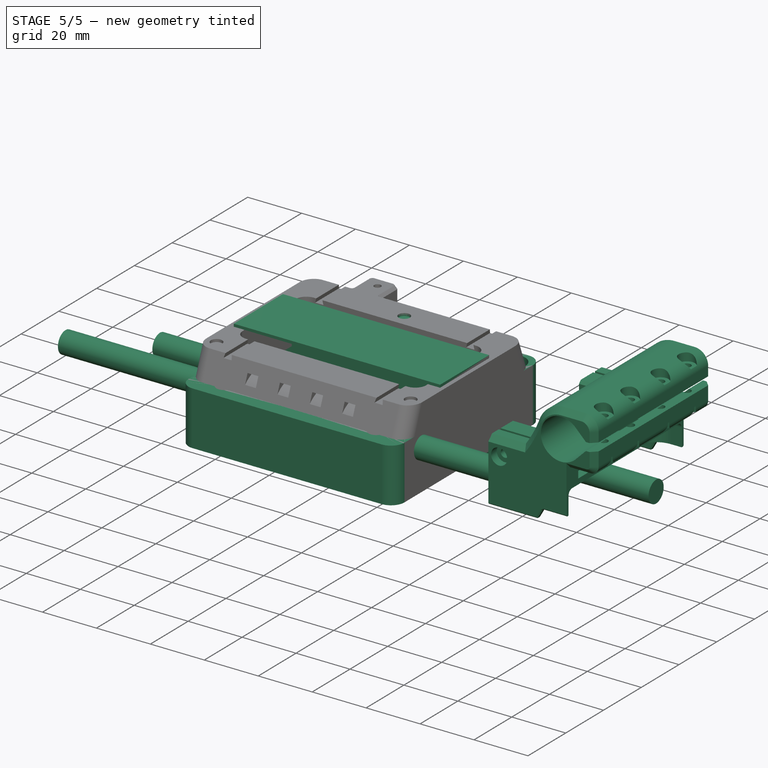
[diagram: stage 5 of 5 — iso view after this stage's code; geometry added in this stage tinted green]
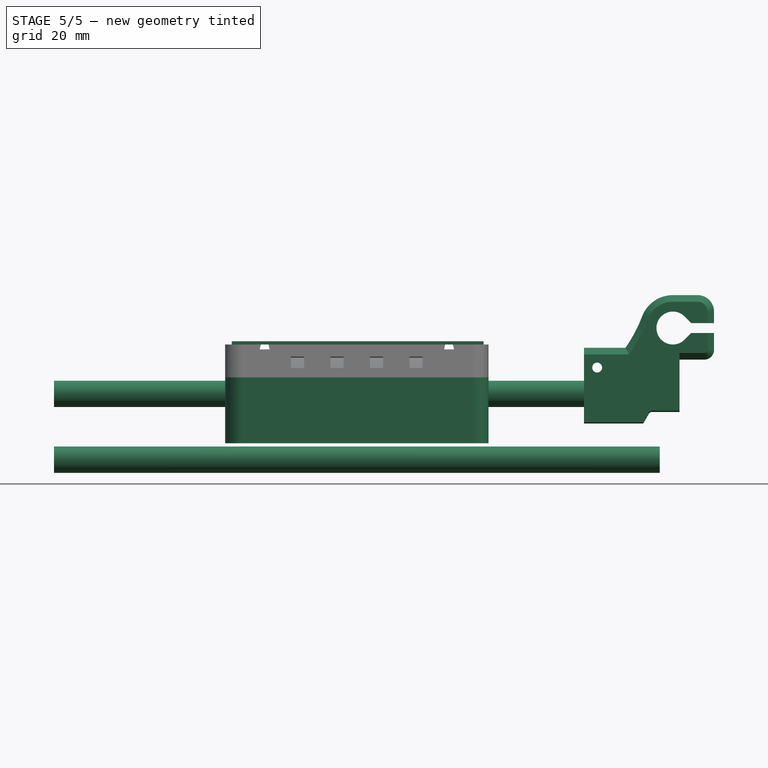
[diagram: stage 5 of 5 — front view after this stage's code; geometry added in this stage tinted green]
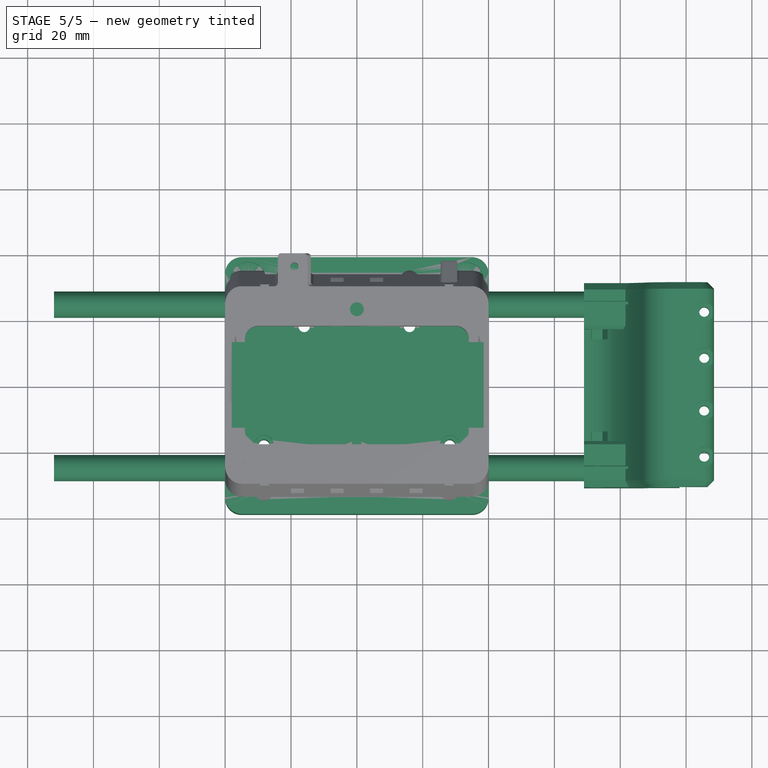
[diagram: stage 5 of 5 — top view after this stage's code; geometry added in this stage tinted green]
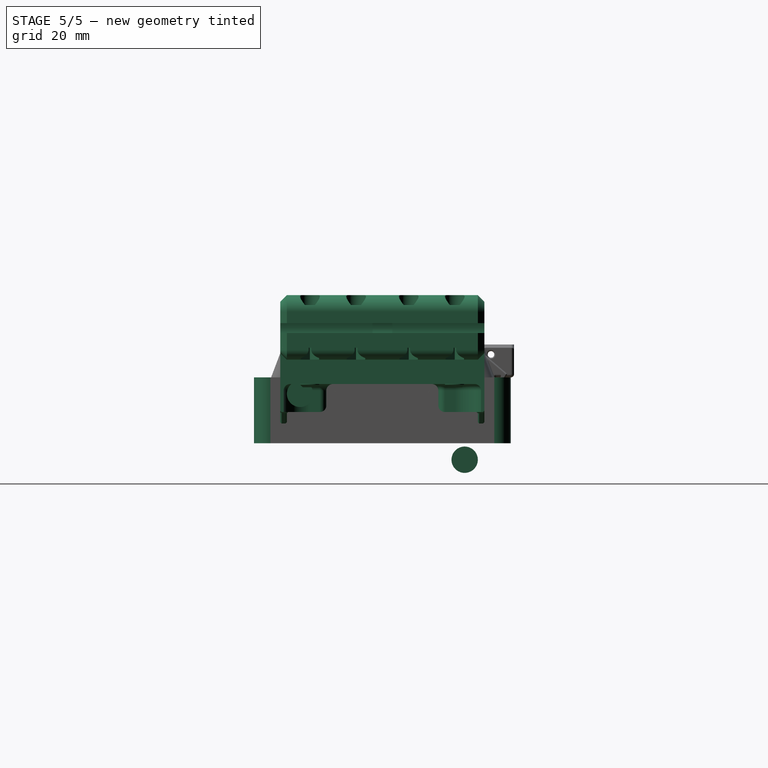
[diagram: stage 5 of 5 — right view after this stage's code; geometry added in this stage tinted green]
FEATURE [Part::FeaturePython] Clone007  label="Clone of LM8UU"  # WARN: FeaturePython — macro-defined, semantics opaque (R4)
  Placement = pos=(-24,-25,-15) rot=(0,1,0;1.5708rad)
  Scale = (1,1,1)
  expr: Placement.Base.z = -Parameters.B9
FEATURE [Part::FeaturePython] Clone004  label="Clone of LM8UU002"  # WARN: FeaturePython — macro-defined, semantics opaque (R4)
  Placement = pos=(0,-25,-15) rot=(0,1,0;1.5708rad)
  Scale = (1,1,1)
  expr: Placement.Base.z = -Parameters.B9
FEATURE [Part::FeaturePython] Clone006  label="Clone of LM8UU003"  # WARN: FeaturePython — macro-defined, semantics opaque (R4)
  Placement = pos=(-12,25,-15) rot=(0,1,0;1.5708rad)
  Scale = (1,1,1)
  expr: Placement.Base.z = -Parameters.B9
FEATURE [Part::FeaturePython] Clone017  label="Clone of XBar"  # WARN: FeaturePython — macro-defined, semantics opaque (R4)
  Placement = pos=(-92,-25,-15) rot=(0,1,0;1.5708rad)
  Scale = (1,1,1)
  expr: Placement.Base.z = -Parameters.B9
FEATURE [Part::FeaturePython] Clone003  label="Clone of TopXCarriage"  # WARN: FeaturePython — macro-defined, semantics opaque (R4)
  Placement = pos=(-40,39,-30) rot=(0,0,-1;1.5708rad)
  Scale = (1,1,1)
FEATURE [Part::Box] Box001  label="SampleMaster"
  Height = 1
  Length = 26
  Placement = pos=(38.5,-13,0) rot=(0,0,1;1.5708rad)
  Width = 76
FEATURE [Part::Compound] Compound002  label="xEndstop"
  Placement = pos=(87,18,-25) rot=(0,-1,0;1.5708rad)
  expr: Placement.Base.z = -Parameters.B9 - 10
FEATURE [Part::Box] Box002  label="SampleMaster001"
  Height = 1
  Length = 26
  Placement = pos=(38,-13,0) rot=(0,0,1;1.5708rad)
  Width = 76
FEATURE [Part::FeaturePython] LYCarriage_step1_01  label="LYCarriage"  # a2plus imported part (geometry in sourceFile) (typed FeaturePython)
  Placement = pos=(-69,0,-15) rot=(0,0,1;0rad)
  fixedPosition = true
  sourceFile = /run<userpath>/DATA/Documents/Design/microspot/Mechanical/Step/Printed/Axes/YCarriage/LYCarriage.step
  timeLastImport = 1.49554e+09
  updateColors = true
  expr: Placement.Base.z = -Parameters.B9
FEATURE [Part::Mirroring] Part__Mirroring005  label="LYCarriage (Mirror #5)"
  Base = (0,0,0)
  Normal = (1,0,0)
  Source = -> LYCarriage_step1_01
FEATURE [Part::FeaturePython] Clone016  label="Clone of XBar (Mirror #9)"  # WARN: FeaturePython — macro-defined, semantics opaque (R4)
  Placement = pos=(0,0,-45) rot=(0,0,1;0rad)
  Scale = (1,1,1)
FEATURE [Part::FeaturePython] Clone029005  label="Clone of Magnet001"  # Draft clone (typed FeaturePython)
  Objects = -> [Cylinder002]
  Placement = pos=(0,23,0) rot=(0,1,0;3.14159rad)
  Scale = (1,1,1)
FEATURE [Part::Cut] Cut007007002003019  label="MagnetCut001"
  Base = -> Cut007007002003018
  Tool = -> Part__Mirroring008
FEATURE [Part::Cut] Cut007007002003020  label="MagnetCut002"
  Base = -> Cut007007002003019
  Tool = -> Clone029005
FEATURE [App::DocumentObjectGroup] Group002  label="src"
  Group = -> [Fillet001,Fillet003,Fusion002,Fillet,Pocket,Fusion001003005002002003,Cut,Pocket001,Fusion001003005002002004,Cut007007002003013,Pad014,refine002,Cut007007002003020]
FEATURE [Part::FeaturePython] Clone029008  label="XCarriage"  # Draft clone (typed FeaturePython)
  Objects = -> [Cut007007002003020]
  Scale = (1,1,1)
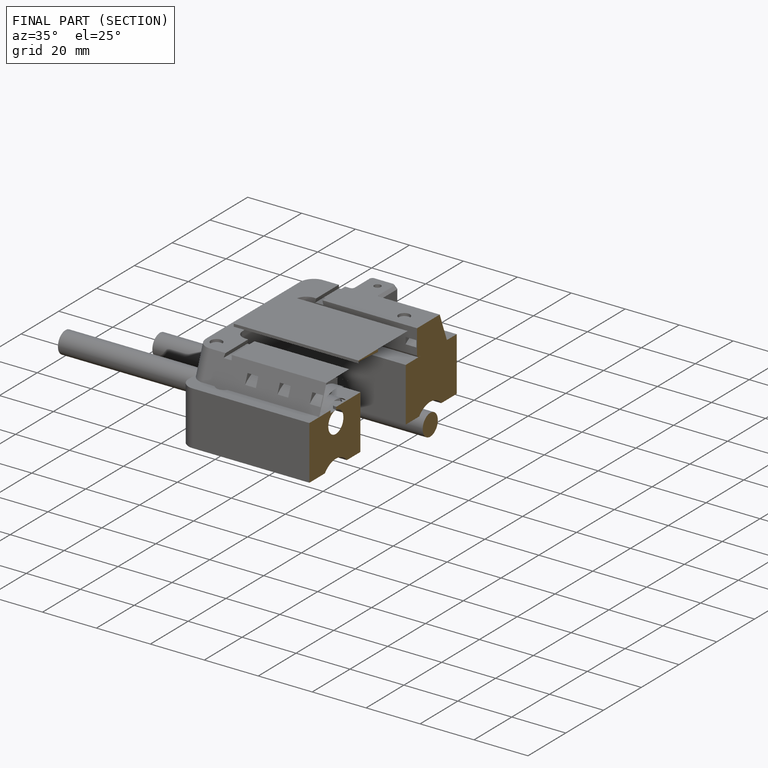
[diagram: finished part — half-section view (interior)]
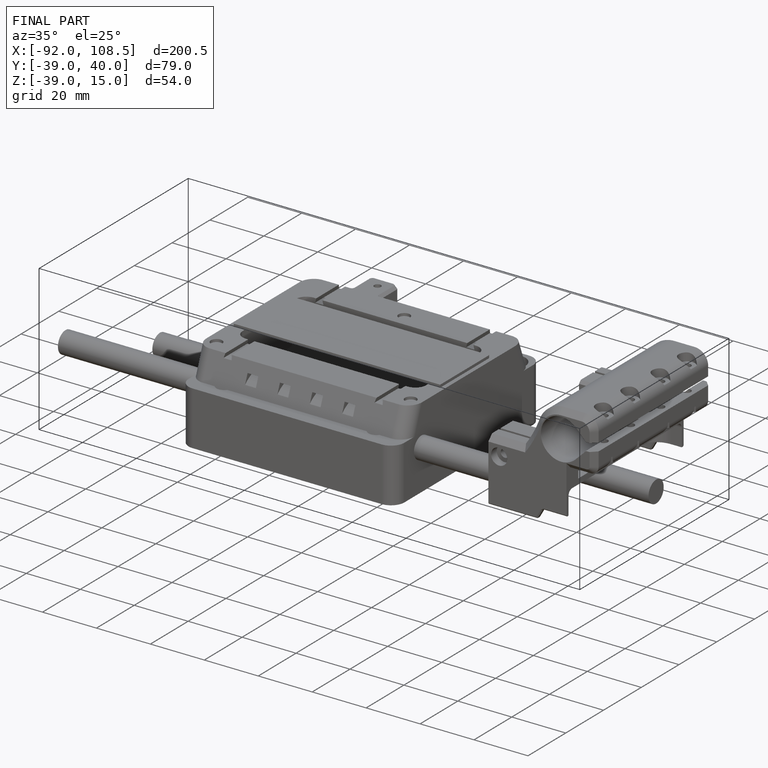
[diagram: finished part — iso view with bounding-box wireframe]
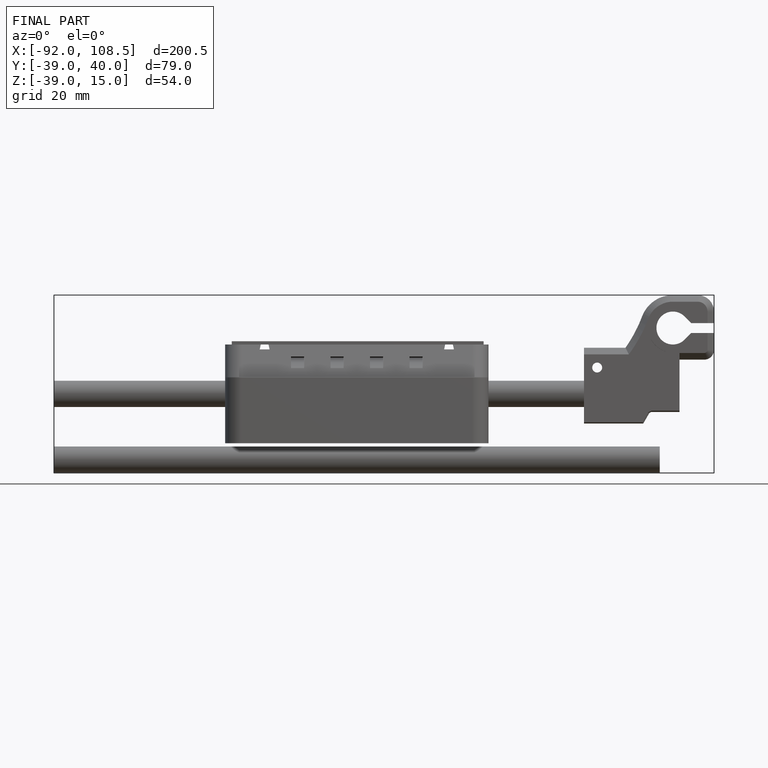
[diagram: finished part — front view with bounding-box wireframe]
